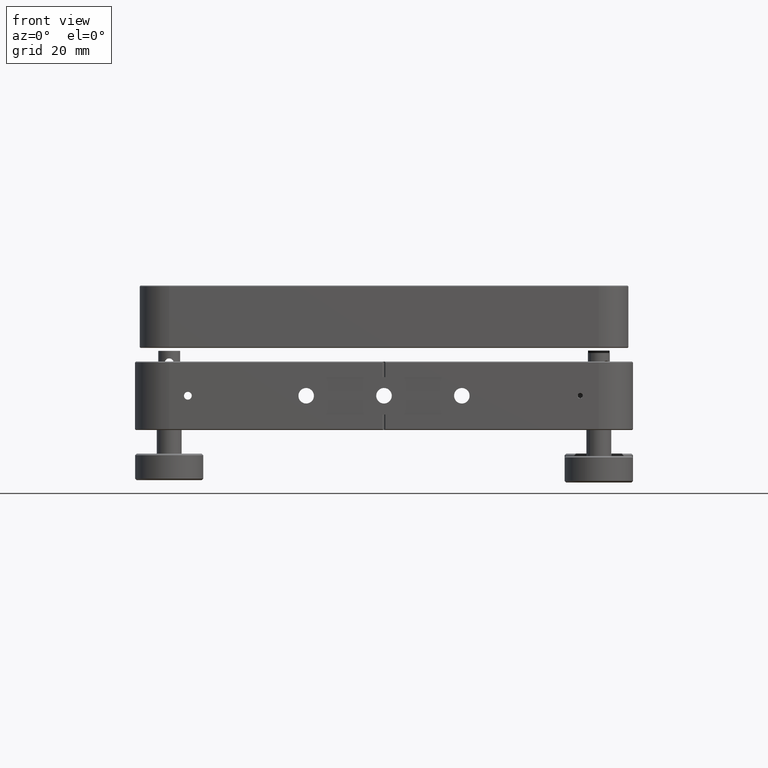
[diagram: clean part render]
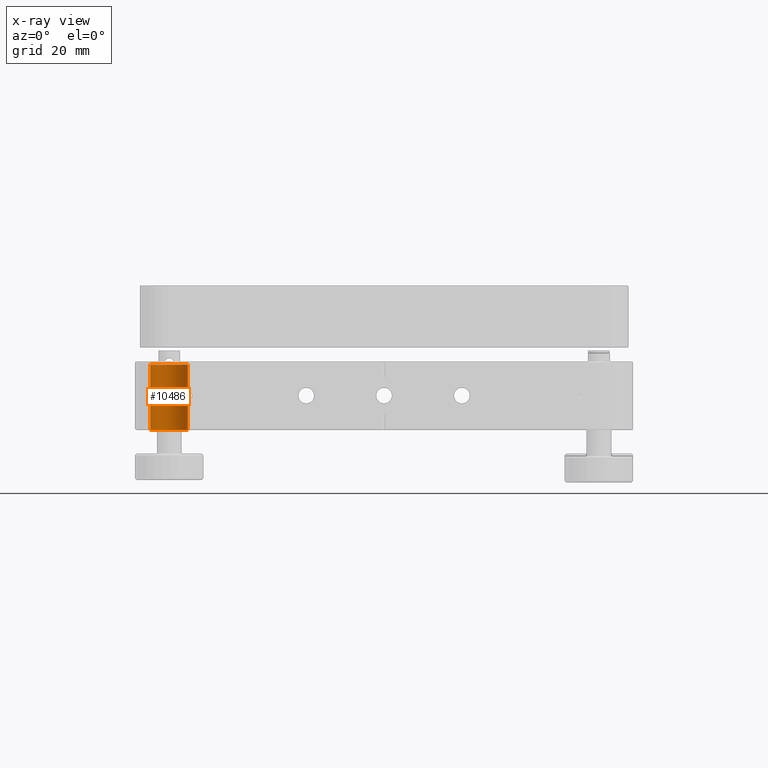
[diagram: x-ray — body ghosted, one internal face saturated and labeled with its STEP entity id]
A machine part, front view, then the same camera in x-ray: the body is ghosted and one INTERNAL B-rep face — a face not visible from any outside direction — is saturated and labeled: STEP entity #10486.
In plain terms, the highlighted cylindrical surface (edge-blend (fillet) strip) has radius 6 mm, axis along (0, 0, -1).
Its self-contained STEP definition (entity closure, byte-faithful):
#510 = CARTESIAN_POINT ( 'NONE',  ( -63.27607548237948265, -67.16283353814863233, -1.227541699854895363 ) ) ;
#544 = CARTESIAN_POINT ( 'NONE',  ( -68.99999999999998579, -69.00000000000001421, 9.999999999999998224 ) ) ;
#689 = VECTOR ( 'NONE', #16085, 1000.000000000000000 ) ;
#700 = CARTESIAN_POINT ( 'NONE',  ( -64.09997800398978995, -65.53688204858657684, -0.5992766933433233412 ) ) ;
#1036 = CARTESIAN_POINT ( 'NONE',  ( -75.00000000000000000, -69.00000000000001421, 9.999999999999998224 ) ) ;
#1266 = DIRECTION ( 'NONE',  ( -1.000000000000000000, 0.000000000000000000, 0.000000000000000000 ) ) ;
#1519 = DIRECTION ( 'NONE',  ( 1.000000000000000000, 0.000000000000000000, 0.000000000000000000 ) ) ;
#1727 = CARTESIAN_POINT ( 'NONE',  ( -63.00000000000000000, -68.62844139303031454, -1.249999999999990674 ) ) ;
#1825 = CARTESIAN_POINT ( 'NONE',  ( -63.28432107509467386, -67.16537350851700694, 1.218362948014910963 ) ) ;
#1923 = CARTESIAN_POINT ( 'NONE',  ( -63.18133658306689426, -67.52419649807229973, 1.237886824584631507 ) ) ;
#2099 = CARTESIAN_POINT ( 'NONE',  ( -64.16822335308461334, -65.44228501125944319, -0.4520380091912009068 ) ) ;
#2161 = CARTESIAN_POINT ( 'NONE',  ( -62.99999999999998579, -69.00000000000001421, -11.00000000000000000 ) ) ;
#2212 = EDGE_LOOP ( 'NONE', ( #16293, #16403, #10479, #10174, #14610, #10384 ) ) ;
#2506 = EDGE_CURVE ( 'NONE', #8000, #9162, #17223, .T. ) ;
#3244 = VECTOR ( 'NONE', #5538, 1000.000000000000000 ) ;
#3435 = CARTESIAN_POINT ( 'NONE',  ( -63.93834132448139940, -65.77717840215282763, 0.8282246022389790907 ) ) ;
#4568 = LINE ( 'NONE', #11646, #689 ) ;
#5035 = CARTESIAN_POINT ( 'NONE',  ( -63.03506567787786707, -68.25264590235744322, -1.251436005054972878 ) ) ;
#5538 = DIRECTION ( 'NONE',  ( 0.000000000000000000, 0.000000000000000000, -1.000000000000000000 ) ) ;
#5839 = VECTOR ( 'NONE', #7026, 1000.000000000000000 ) ;
#5981 = LINE ( 'NONE', #7205, #5839 ) ;
#6073 = CARTESIAN_POINT ( 'NONE',  ( -64.17094071428412860, -65.43860718666965681, 0.4450038959629155078 ) ) ;
#6170 = CARTESIAN_POINT ( 'NONE',  ( -63.13843892088684129, -67.70517300958670148, 1.242790363445695601 ) ) ;
#6293 = DIRECTION ( 'NONE',  ( 0.000000000000000000, 0.000000000000000000, 1.000000000000000000 ) ) ;
#6355 = CARTESIAN_POINT ( 'NONE',  ( -64.23952023704343617, -65.34775358742685114, 0.1851242048214218894 ) ) ;
#6451 = CARTESIAN_POINT ( 'NONE',  ( -63.55501766432809774, -66.47319589761771397, -1.123955487168854850 ) ) ;
#6784 = EDGE_CURVE ( 'NONE', #9162, #9901, #15743, .T. ) ;
#7026 = DIRECTION ( 'NONE',  ( 0.000000000000000000, 0.000000000000000000, -1.000000000000000000 ) ) ;
#7039 = AXIS2_PLACEMENT_3D ( 'NONE', #544, #6293, #7331 ) ;
#7103 = FACE_OUTER_BOUND ( 'NONE', #2212, .T. ) ;
#7205 = CARTESIAN_POINT ( 'NONE',  ( -62.99999999999998579, -69.00000000000001421, 11.00000000000000000 ) ) ;
#7331 = DIRECTION ( 'NONE',  ( 1.000000000000000000, 0.000000000000000000, 0.000000000000000000 ) ) ;
#7485 = CARTESIAN_POINT ( 'NONE',  ( -63.80679783533964411, -65.99026219198769638, 0.9629844156710400949 ) ) ;
#7579 = CARTESIAN_POINT ( 'NONE',  ( -64.19768547221781319, -65.40293084955000324, -0.3690722888009878577 ) ) ;
#7676 = CARTESIAN_POINT ( 'NONE',  ( -63.97780713787683027, -65.71624140108581003, -0.7819749117090921686 ) ) ;
#7862 = CARTESIAN_POINT ( 'NONE',  ( -64.25029838675781946, -65.33389377754276950, 0.08989913163700002929 ) ) ;
#8000 = VERTEX_POINT ( 'NONE', #9878 ) ;
#8044 = EDGE_CURVE ( 'NONE', #8663, #9295, #16079, .T. ) ;
#8222 = AXIS2_PLACEMENT_3D ( 'NONE', #12753, #10286, #1519 ) ;
#8663 = VERTEX_POINT ( 'NONE', #14852 ) ;
#8691 = EDGE_CURVE ( 'NONE', #9295, #9901, #4568, .T. ) ;
#9002 = CARTESIAN_POINT ( 'NONE',  ( -63.55702805116133902, -66.46877654660295320, 1.123044878255692547 ) ) ;
#9076 = B_SPLINE_CURVE_WITH_KNOTS ( 'NONE', 3,
 ( #10604, #10508, #11918, #6170, #1923, #1825, #16362, #14749, #9002, #9099, #7485, #3435, #16262, #17666, #9195, #6073, #14843, #6355, #7862, #17954, #13607, #7579, #2099, #700, #13514, #7676, #10697, #16456, #13426, #6451, #13325, #510, #12204, #5035, #1727, #11827 ),
 .UNSPECIFIED., .F., .F.,
 ( 4, 2, 2, 2, 2, 2, 2, 2, 2, 2, 2, 2, 2, 2, 2, 2, 2, 4 ),
 ( 1.388456241783856658E-17, 0.001113954897904537297, 0.001670932346856802801, 0.002227909795809068522, 0.002784887244761334243, 0.003341864693713599965, 0.003620353418189723067, 0.003898842142665847037, 0.004177330867141970140, 0.004455819591618093677, 0.004734308316094216346, 0.005012797040570339015, 0.005291285765046461684, 0.005569774489522584353, 0.006126751938474851375, 0.006683729387427116662, 0.007797684285331624686, 0.008911639183236133577 ),
 .UNSPECIFIED. ) ;
#9099 = CARTESIAN_POINT ( 'NONE',  ( -63.72022422600573321, -66.14395315458315849, 1.026054147027005703 ) ) ;
#9162 = VERTEX_POINT ( 'NONE', #2161 ) ;
#9195 = CARTESIAN_POINT ( 'NONE',  ( -64.10331199631922061, -65.53217951006563169, 0.5931553443816443005 ) ) ;
#9295 = VERTEX_POINT ( 'NONE', #1036 ) ;
#9426 = CARTESIAN_POINT ( 'NONE',  ( -62.99999999999998579, -69.00000000000000000, 1.249999999999990674 ) ) ;
#9868 = CARTESIAN_POINT ( 'NONE',  ( -62.99999999999998579, -69.00000000000001421, 11.00000000000000000 ) ) ;
#9878 = CARTESIAN_POINT ( 'NONE',  ( -62.99999999999998579, -69.00000000000001421, -1.249999999999990674 ) ) ;
#9901 = VERTEX_POINT ( 'NONE', #11288 ) ;
#9986 = AXIS2_PLACEMENT_3D ( 'NONE', #12939, #17197, #1266 ) ;
#10174 = ORIENTED_EDGE ( 'NONE', *, *, #6784, .F. ) ;
#10286 = DIRECTION ( 'NONE',  ( 0.000000000000000000, 0.000000000000000000, 1.000000000000000000 ) ) ;
#10384 = ORIENTED_EDGE ( 'NONE', *, *, #12318, .F. ) ;
#10479 = ORIENTED_EDGE ( 'NONE', *, *, #8691, .T. ) ;
#10486 = ADVANCED_FACE ( 'NONE', ( #7103 ), #11356, .F. ) ;
#10508 = CARTESIAN_POINT ( 'NONE',  ( -62.99999999999994316, -68.62331343843966636, 1.249999999999990674 ) ) ;
#10604 = CARTESIAN_POINT ( 'NONE',  ( -62.99999999999998579, -69.00000000000000000, 1.249999999999990674 ) ) ;
#10697 = CARTESIAN_POINT ( 'NONE',  ( -63.93484836030260965, -65.78268711934849478, -0.8321056435616421831 ) ) ;
#11288 = CARTESIAN_POINT ( 'NONE',  ( -75.00000000000000000, -69.00000000000001421, -11.00000000000000000 ) ) ;
#11356 = CYLINDRICAL_SURFACE ( 'NONE', #9986, 6.000000000000005329 ) ;
#11646 = CARTESIAN_POINT ( 'NONE',  ( -75.00000000000000000, -69.00000000000001421, 11.00000000000000000 ) ) ;
#11827 = CARTESIAN_POINT ( 'NONE',  ( -62.99999999999998579, -69.00000000000001421, -1.249999999999990674 ) ) ;
#11918 = CARTESIAN_POINT ( 'NONE',  ( -63.03516917574224010, -68.25254156296686858, 1.251413607979763976 ) ) ;
#12181 = EDGE_CURVE ( 'NONE', #8663, #14587, #5981, .T. ) ;
#12204 = CARTESIAN_POINT ( 'NONE',  ( -63.17345832695822594, -67.52000278824544921, -1.239852364324812495 ) ) ;
#12318 = EDGE_CURVE ( 'NONE', #14587, #8000, #9076, .T. ) ;
#12753 = CARTESIAN_POINT ( 'NONE',  ( -68.99999999999998579, -69.00000000000001421, -11.00000000000000000 ) ) ;
#12939 = CARTESIAN_POINT ( 'NONE',  ( -68.99999999999998579, -69.00000000000001421, 11.00000000000000000 ) ) ;
#13325 = CARTESIAN_POINT ( 'NONE',  ( -63.47924734411233771, -66.64290152189138894, -1.156704827246176404 ) ) ;
#13426 = CARTESIAN_POINT ( 'NONE',  ( -63.71673344335474098, -66.15049721898209611, -1.028403479199684556 ) ) ;
#13514 = CARTESIAN_POINT ( 'NONE',  ( -64.06044203493335942, -65.59320402870226019, -0.6656232057040205596 ) ) ;
#13607 = CARTESIAN_POINT ( 'NONE',  ( -64.23831486880138186, -65.34931704907300798, -0.1929796114304714871 ) ) ;
#14587 = VERTEX_POINT ( 'NONE', #9426 ) ;
#14610 = ORIENTED_EDGE ( 'NONE', *, *, #2506, .F. ) ;
#14749 = CARTESIAN_POINT ( 'NONE',  ( -63.48090494314178045, -66.63897614840871597, 1.156039627783300494 ) ) ;
#14843 = CARTESIAN_POINT ( 'NONE',  ( -64.19995544426924994, -65.39991059907222848, 0.3616466798125912985 ) ) ;
#14852 = CARTESIAN_POINT ( 'NONE',  ( -62.99999999999998579, -69.00000000000001421, 9.999999999999998224 ) ) ;
#15743 = CIRCLE ( 'NONE', #8222, 6.000000000000005329 ) ;
#16079 = CIRCLE ( 'NONE', #7039, 6.000000000000005329 ) ;
#16085 = DIRECTION ( 'NONE',  ( 0.000000000000000000, 0.000000000000000000, -1.000000000000000000 ) ) ;
#16262 = CARTESIAN_POINT ( 'NONE',  ( -63.98151232234705788, -65.71058962009550442, 0.7773441658092655748 ) ) ;
#16293 = ORIENTED_EDGE ( 'NONE', *, *, #12181, .F. ) ;
#16362 = CARTESIAN_POINT ( 'NONE',  ( -63.34481341808489674, -66.98661762247020590, 1.203661452424293232 ) ) ;
#16403 = ORIENTED_EDGE ( 'NONE', *, *, #8044, .T. ) ;
#16456 = CARTESIAN_POINT ( 'NONE',  ( -63.80450093346951235, -65.99429830651460804, -0.9646985452863622301 ) ) ;
#17197 = DIRECTION ( 'NONE',  ( 0.000000000000000000, 0.000000000000000000, -1.000000000000000000 ) ) ;
#17223 = LINE ( 'NONE', #9868, #3244 ) ;
#17666 = CARTESIAN_POINT ( 'NONE',  ( -64.06388218675274970, -65.58822917652410922, 0.6601402000688433302 ) ) ;
#17954 = CARTESIAN_POINT ( 'NONE',  ( -64.24968844366229348, -65.33468413818135900, -0.09801379278043578780 ) ) ;